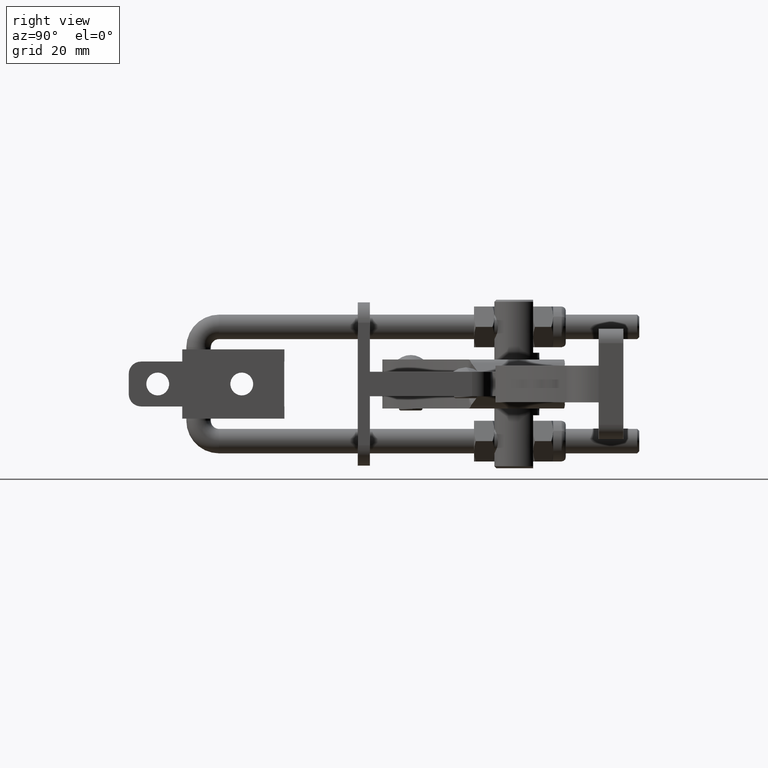
[diagram: clean part render]
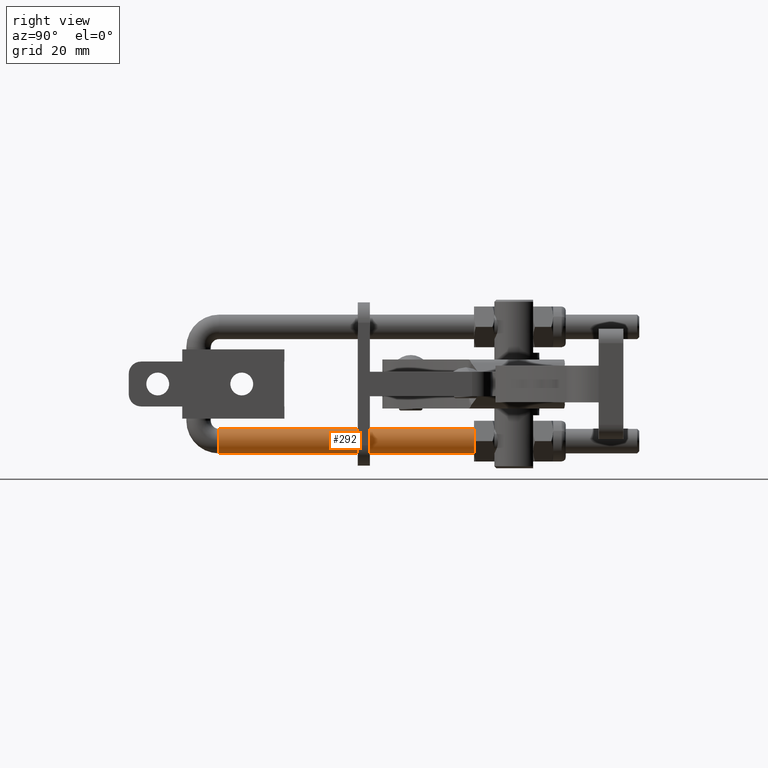
[diagram: same view with one face highlighted and labeled with its STEP entity id]
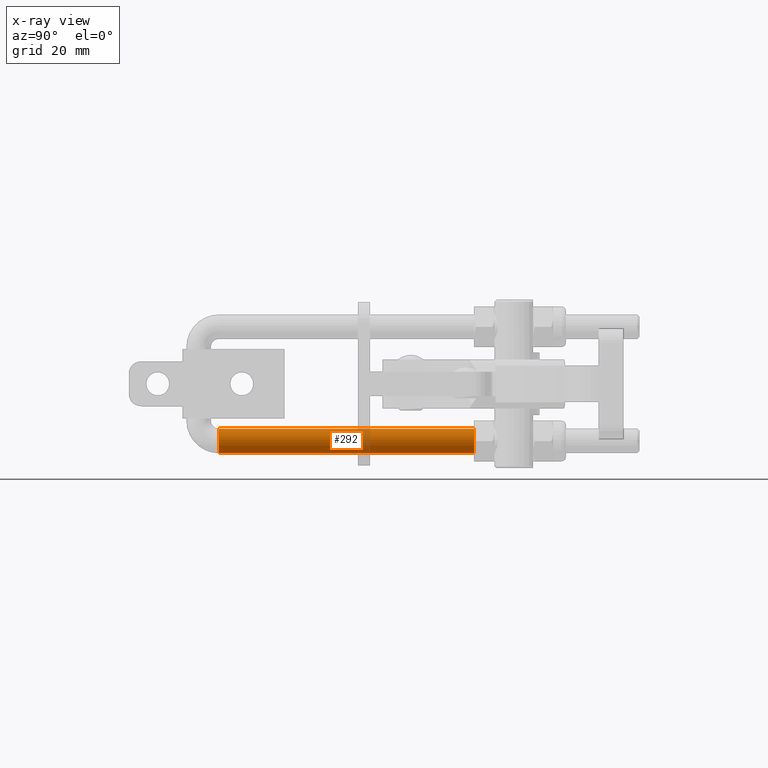
[diagram: x-ray of the same camera — body ghosted, the highlighted face saturated]
A machine part, right view. The second image highlights one B-rep face of the part: STEP entity #292.
The next image is the same camera in x-ray: the body ghosted, the highlighted face saturated — about 5% of this face is hidden behind the body in this view.
In plain terms, the highlighted cylindrical surface (edge-blend (fillet) strip) has radius 3 mm, axis along (-0, 1, -0).
Its self-contained STEP definition (entity closure, byte-faithful):
#292 = ADVANCED_FACE ( 'NONE', ( #2655 ), #4630, .T. ) ;
#428 = CARTESIAN_POINT ( 'NONE',  ( -42.13817590730899800, -33.99771005529757400, -13.99999999999999300 ) ) ;
#453 = AXIS2_PLACEMENT_3D ( 'NONE', #428, #2598, #6112 ) ;
#1070 = CIRCLE ( 'NONE', #3866, 3.000000000000002700 ) ;
#1299 = ORIENTED_EDGE ( 'NONE', *, *, #6800, .T. ) ;
#1308 = CARTESIAN_POINT ( 'NONE',  ( -42.13817590730900500, -33.99771005529757400, -10.99999999999999300 ) ) ;
#1462 = EDGE_CURVE ( 'NONE', #7235, #5712, #5409, .T. ) ;
#1761 = ORIENTED_EDGE ( 'NONE', *, *, #5898, .T. ) ;
#2598 = DIRECTION ( 'NONE',  ( -2.220446049250312600E-016, 1.000000000000000000, -4.818676322157196700E-017 ) ) ;
#2642 = DIRECTION ( 'NONE',  ( 0.0000000000000000000, 0.0000000000000000000, -1.000000000000000000 ) ) ;
#2655 = FACE_OUTER_BOUND ( 'NONE', #8291, .T. ) ;
#2795 = AXIS2_PLACEMENT_3D ( 'NONE', #7829, #8030, #2642 ) ;
#3247 = VERTEX_POINT ( 'NONE', #8450 ) ;
#3866 = AXIS2_PLACEMENT_3D ( 'NONE', #4079, #9895, #4906 ) ;
#3930 = EDGE_CURVE ( 'NONE', #7235, #3247, #8669, .T. ) ;
#4079 = CARTESIAN_POINT ( 'NONE',  ( -42.13817590730901200, 28.50228994470244000, -13.99999999999999600 ) ) ;
#4177 = CARTESIAN_POINT ( 'NONE',  ( -42.13817590730899800, -33.99771005529757400, -16.99999999999999300 ) ) ;
#4345 = LINE ( 'NONE', #5197, #10439 ) ;
#4356 = DIRECTION ( 'NONE',  ( -2.220446049250312600E-016, 1.000000000000000000, -4.818676322157196700E-017 ) ) ;
#4630 = CYLINDRICAL_SURFACE ( 'NONE', #2795, 3.000000000000000900 ) ;
#4843 = CARTESIAN_POINT ( 'NONE',  ( -42.13817590730899800, -33.99771005529757400, -10.99999999999999300 ) ) ;
#4906 = DIRECTION ( 'NONE',  ( -1.000000000000000000, -1.156482317317870300E-015, 0.0000000000000000000 ) ) ;
#5197 = CARTESIAN_POINT ( 'NONE',  ( -42.13817590730899800, -33.99771005529757400, -16.99999999999999300 ) ) ;
#5409 = CIRCLE ( 'NONE', #453, 3.000000000000000900 ) ;
#5712 = VERTEX_POINT ( 'NONE', #4177 ) ;
#5898 = EDGE_CURVE ( 'NONE', #5712, #6804, #4345, .T. ) ;
#6112 = DIRECTION ( 'NONE',  ( 0.0000000000000000000, 0.0000000000000000000, -1.000000000000000000 ) ) ;
#6800 = EDGE_CURVE ( 'NONE', #6804, #3247, #1070, .T. ) ;
#6804 = VERTEX_POINT ( 'NONE', #10697 ) ;
#7110 = ORIENTED_EDGE ( 'NONE', *, *, #3930, .F. ) ;
#7235 = VERTEX_POINT ( 'NONE', #1308 ) ;
#7829 = CARTESIAN_POINT ( 'NONE',  ( -42.13817590730899800, -33.99771005529757400, -13.99999999999999300 ) ) ;
#8030 = DIRECTION ( 'NONE',  ( -2.220446049250312600E-016, 1.000000000000000000, -4.818676322157196700E-017 ) ) ;
#8284 = ORIENTED_EDGE ( 'NONE', *, *, #1462, .T. ) ;
#8291 = EDGE_LOOP ( 'NONE', ( #7110, #8284, #1761, #1299 ) ) ;
#8410 = VECTOR ( 'NONE', #8663, 1000.000000000000000 ) ;
#8450 = CARTESIAN_POINT ( 'NONE',  ( -42.13817590730900500, 28.50228994470244000, -10.99999999999999600 ) ) ;
#8663 = DIRECTION ( 'NONE',  ( -2.220446049250312600E-016, 1.000000000000000000, -4.818676322157196700E-017 ) ) ;
#8669 = LINE ( 'NONE', #4843, #8410 ) ;
#9895 = DIRECTION ( 'NONE',  ( 1.165734175856414400E-015, -1.000000000000000000, 4.857225732735059900E-016 ) ) ;
#10439 = VECTOR ( 'NONE', #4356, 1000.000000000000000 ) ;
#10697 = CARTESIAN_POINT ( 'NONE',  ( -42.13817590730900500, 28.50228994470244000, -16.99999999999999600 ) ) ;